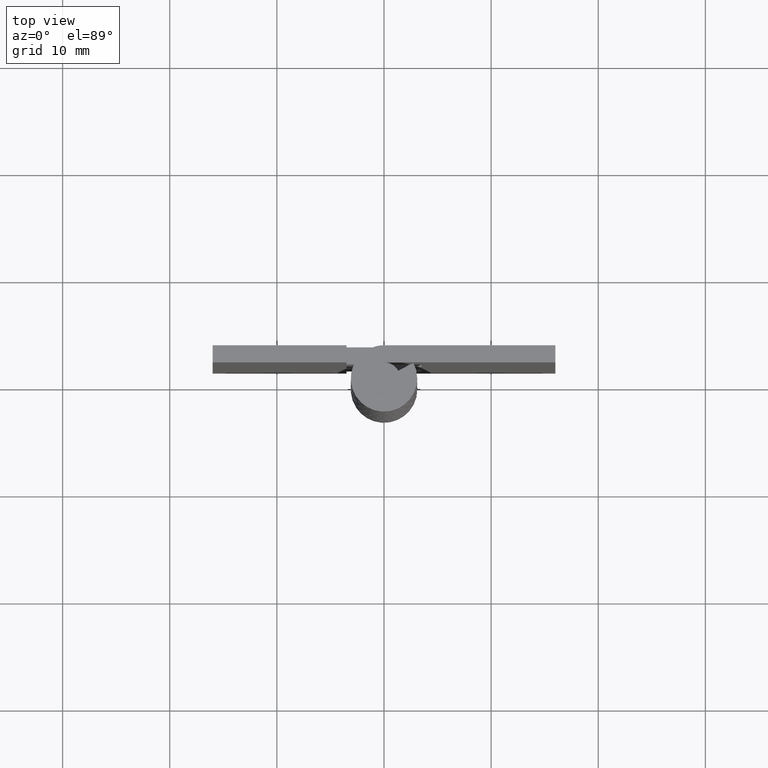
[diagram: clean part render]
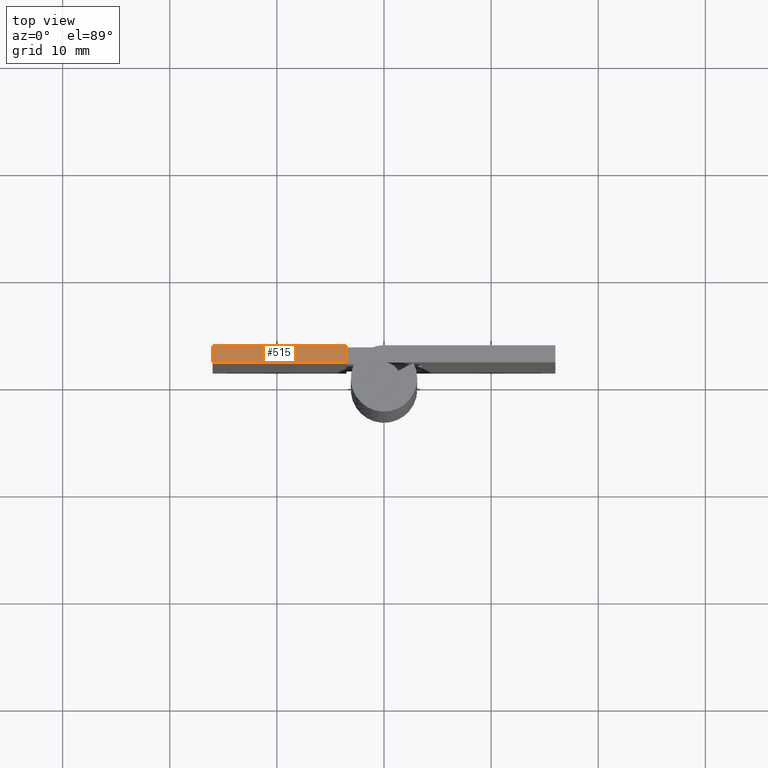
[diagram: same view with one face highlighted and labeled with its STEP entity id]
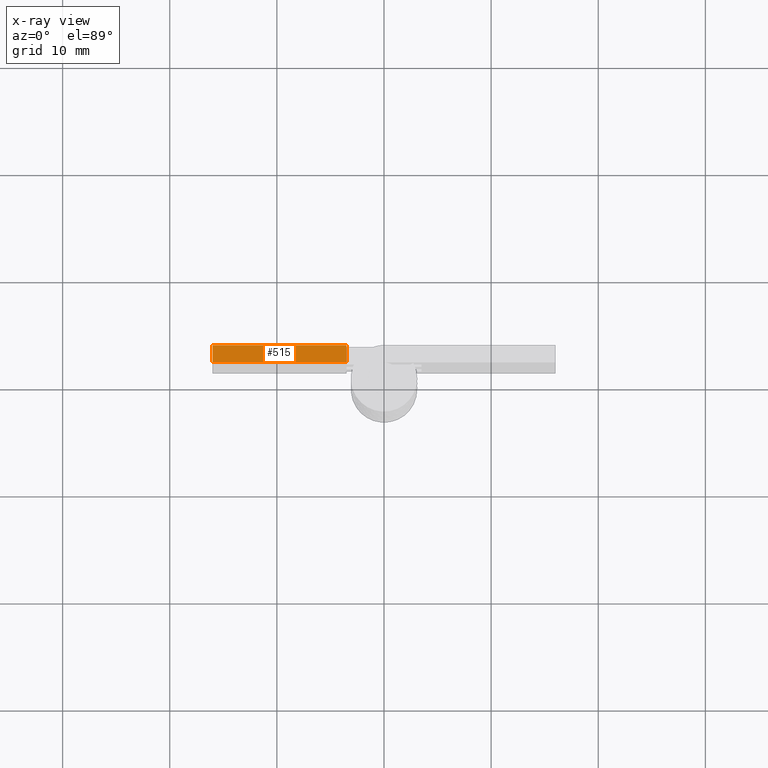
[diagram: x-ray of the same camera — body ghosted, the highlighted face saturated]
A machine part, top view. The second image highlights one B-rep face of the part: STEP entity #515.
The next image is the same camera in x-ray: the body ghosted, the highlighted face saturated — about 0% of this face is hidden behind the body in this view.
In plain terms, the highlighted face is a freeform B-spline surface patch.
Its self-contained STEP definition (entity closure, byte-faithful):
#352=CARTESIAN_POINT('',(-3.500000000000100,1.499999999999946,60.0));
#353=VERTEX_POINT('',#352);
#368=CARTESIAN_POINT('',(-3.500000000000100,3.099998000000000,60.0));
#369=VERTEX_POINT('',#368);
#375=CARTESIAN_POINT('',(-3.500000000000100,1.499999999999946,60.0));
#376=CARTESIAN_POINT('',(-3.500000000000100,3.099998000000000,60.0));
#377=QUASI_UNIFORM_CURVE('',1,(#375,#376),.UNSPECIFIED.,.F.,.U.);
#378=EDGE_CURVE('',#353,#369,#377,.T.);
#474=CARTESIAN_POINT('',(-16.0,1.500000000000000,60.0));
#475=VERTEX_POINT('',#474);
#481=CARTESIAN_POINT('',(-16.0,3.099998000000000,60.0));
#482=VERTEX_POINT('',#481);
#483=CARTESIAN_POINT('',(-16.0,3.099998000000000,60.0));
#484=CARTESIAN_POINT('',(-16.0,1.500000000000000,60.0));
#485=QUASI_UNIFORM_CURVE('',1,(#483,#484),.UNSPECIFIED.,.F.,.U.);
#486=EDGE_CURVE('',#482,#475,#485,.T.);
#496=CARTESIAN_POINT('',(-16.624374975772572,1.420080103001050,60.0));
#497=CARTESIAN_POINT('',(-2.875624688951403,1.420080103001050,60.0));
#498=CARTESIAN_POINT('',(-16.624374975772572,3.179917939914187,60.0));
#499=CARTESIAN_POINT('',(-2.875624688951403,3.179917939914187,60.0));
#500=B_SPLINE_SURFACE_WITH_KNOTS('',1,1,((#496,#498),(#497,#499)),.UNSPECIFIED.,.F.,.F.,.U.,(2,2),(2,2),(0.0,13.748750286821171),(0.041708334948495,0.958291687403247),.UNSPECIFIED.);
#501=ORIENTED_EDGE('',*,*,#378,.T.);
#502=CARTESIAN_POINT('',(-3.500000000000100,3.099998000000000,60.0));
#503=CARTESIAN_POINT('',(-16.0,3.099998000000000,60.0));
#504=QUASI_UNIFORM_CURVE('',1,(#502,#503),.UNSPECIFIED.,.F.,.U.);
#505=EDGE_CURVE('',#369,#482,#504,.T.);
#506=ORIENTED_EDGE('',*,*,#505,.T.);
#507=ORIENTED_EDGE('',*,*,#486,.T.);
#508=CARTESIAN_POINT('',(-16.0,1.500000000000000,60.0));
#509=CARTESIAN_POINT('',(-3.500000000000100,1.499999999999946,60.0));
#510=QUASI_UNIFORM_CURVE('',1,(#508,#509),.UNSPECIFIED.,.F.,.U.);
#511=EDGE_CURVE('',#475,#353,#510,.T.);
#512=ORIENTED_EDGE('',*,*,#511,.T.);
#513=EDGE_LOOP('',(#501,#506,#507,#512));
#514=FACE_OUTER_BOUND('',#513,.T.);
#515=ADVANCED_FACE('',(#514),#500,.T.);